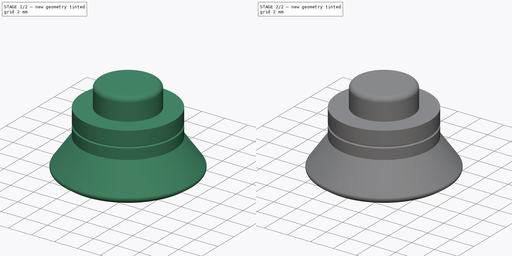
[diagram: build sequence overview — one tinted view per stage of 2, left to right]
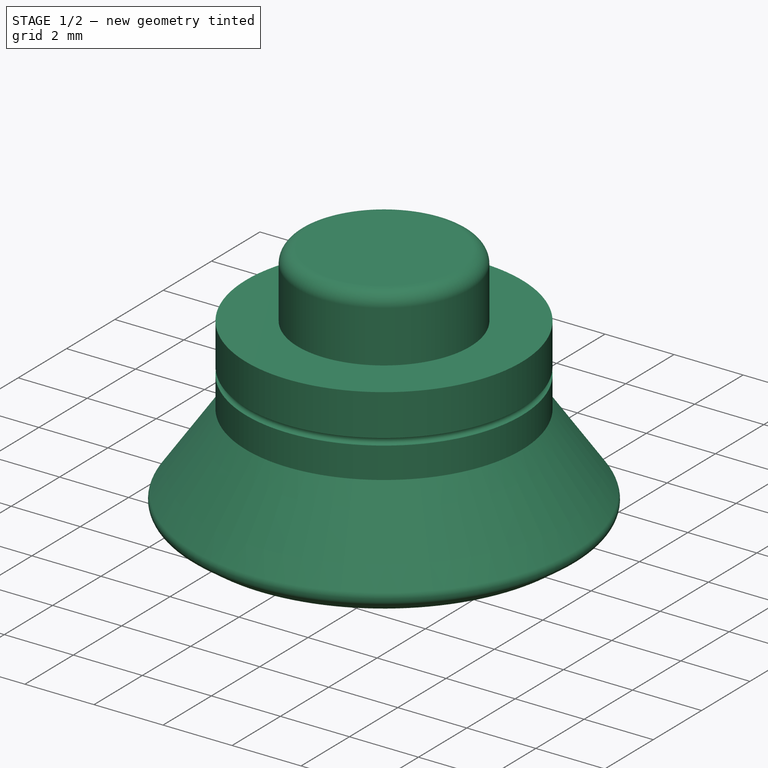
[diagram: stage 1 of 2 — iso view after this stage's code; geometry added in this stage tinted green]
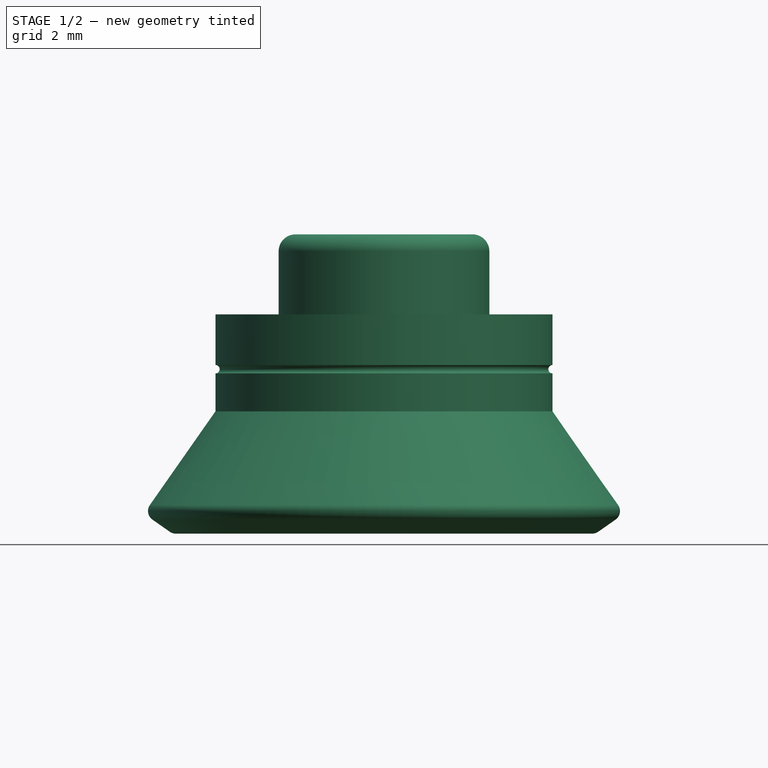
[diagram: stage 1 of 2 — front view after this stage's code; geometry added in this stage tinted green]
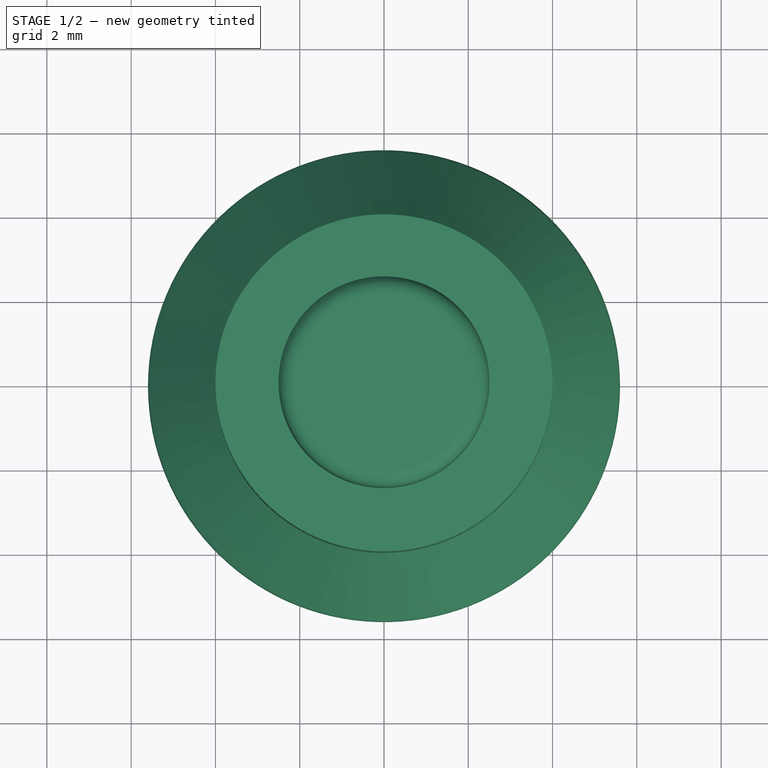
[diagram: stage 1 of 2 — top view after this stage's code; geometry added in this stage tinted green]
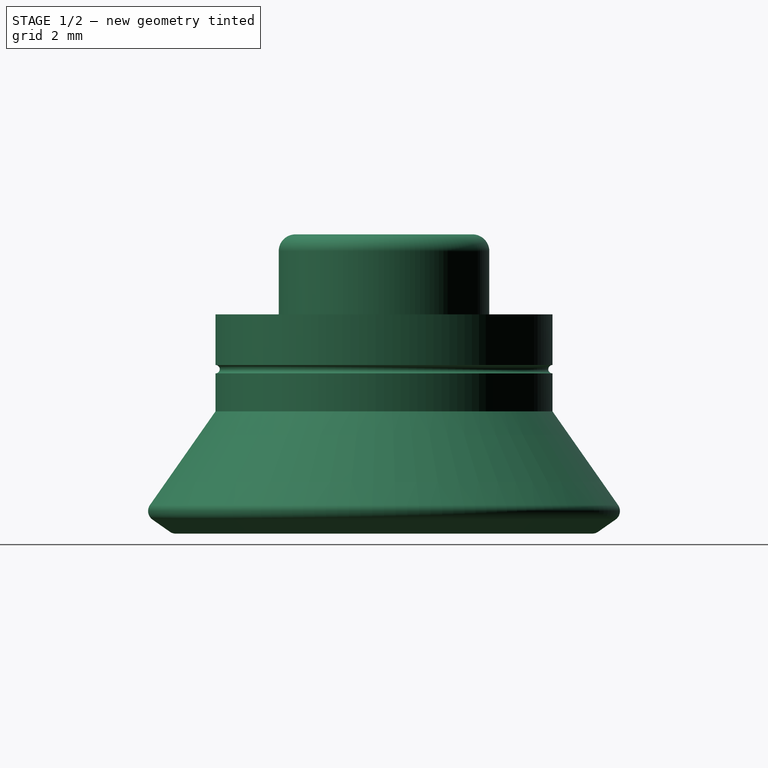
[diagram: stage 1 of 2 — right view after this stage's code; geometry added in this stage tinted green]
FCSTD DOCUMENT  (FreeCAD 1.0R39285 (Git))
Label: LampeOben
License: Creative Commons Attribution-NonCommercial 4.0
LicenseURL: https://creativecommons.org/licenses/by-nc/4.0/
objects: Sketcher::SketchObject×3, PartDesign::Pocket×2, PartDesign::Revolution×1, PartDesign::Body×1
note: 16 computed .brp shape members not serialized (recipe doc carries the construction recipe); baked Part::Feature solids carry a one-line shape summary decoded from their .brp

FEATURE [Sketcher::SketchObject] Sketch  label="S_Lampenkegel"
  ArcFitTolerance = 1e-06
  AttachmentSupport = -> [XZ_Plane]
  FullyConstrained = true
  MakeInternals = false
  MapMode = 5
  Placement = pos=(0,0,0) rot=(1,0,0;1.5708rad)
  sketch-geometry (17):
    g0: LineSegment StartX=0 StartY=1.9 StartZ=0 EndX=-2.1 EndY=1.9 EndZ=0
    g1: LineSegment StartX=-2.5 StartY=1.5 StartZ=0 EndX=-2.5 EndY=0 EndZ=0
    g2: LineSegment StartX=-2.5 StartY=0 StartZ=0 EndX=-4 EndY=0 EndZ=0
    g3: LineSegment StartX=-4 StartY=-2.3 StartZ=0 EndX=-5.55561 EndY=-4.52164 EndZ=0
    g4: LineSegment StartX=-5.49421 StartY=-4.86982 StartZ=0 EndX=-5.08464 EndY=-5.15661 EndZ=0
    g5: LineSegment StartX=-4.73645 StartY=-5.09521 StartZ=0 EndX=-2.91927 EndY=-2.5 EndZ=0
    g6: LineSegment StartX=-2.91927 StartY=-2.5 StartZ=0 EndX=0 EndY=-2.5 EndZ=0
    g7: ArcOfCircle CenterX=-5.35082 CenterY=-4.66503 CenterZ=0 NormalX=0 NormalY=0 NormalZ=1 AngleXU=0 Radius=0.25 StartAngle=2.53073 EndAngle=4.10152
    g8: GeomPoint [constr] X=-5.699 Y=-4.72642 Z=0
    g9: ArcOfCircle CenterX=-4.94124 CenterY=-4.95182 CenterZ=0 NormalX=0 NormalY=0 NormalZ=1 AngleXU=0 Radius=0.25 StartAngle=4.10152 EndAngle=5.67232
    g10: GeomPoint [constr] X=-4.87985 Y=-5.3 Z=0
    g11: LineSegment StartX=0 StartY=-2.5 StartZ=0 EndX=0 EndY=1.9 EndZ=0
    g12: ArcOfCircle CenterX=-4 CenterY=-1.3 CenterZ=0 NormalX=0 NormalY=0 NormalZ=1 AngleXU=0 Radius=0.1 StartAngle=4.71239 EndAngle=7.85398
    g13: LineSegment StartX=-4 StartY=0 StartZ=0 EndX=-4 EndY=-1.2 EndZ=0
    g14: LineSegment StartX=-4 StartY=-1.4 StartZ=0 EndX=-4 EndY=-2.3 EndZ=0
    g15: ArcOfCircle CenterX=-2.1 CenterY=1.5 CenterZ=0 NormalX=0 NormalY=0 NormalZ=1 AngleXU=0 Radius=0.4 StartAngle=1.5708 EndAngle=3.14159
    g16: GeomPoint [constr] X=-2.5 Y=1.9 Z=0
  constraints (46):
    c: PointOnObject(g0,g-2)
    c: Horizontal(g0)
    c: PointOnObject(g1,g-1)
    c: Vertical(g1)
    c: Coincident(g1,g2)
    c: PointOnObject(g2,g-1)
    c: Coincident(g2,g13)
    c: Coincident(g14,g3)
    c: Coincident(g5,g6)
    c: PointOnObject(g6,g-2)
    c: Horizontal(g6)
    c: PointOnObject(g8,g3)
    c: PointOnObject(g8,g4)
    c: Tangent(g3,g7) = -1.5708
    c: Tangent(g4,g7) = -1.5708
    c: PointOnObject(g10,g5)
    c: PointOnObject(g10,g4)
    c: Tangent(g5,g9) = -1.5708
    c: Tangent(g4,g9) = -1.5708
    c: DistanceX(g16,g0) = 2.5
    c: DistanceX(g2,g1) = 1.5
    c: DistanceY(g-1,g0) = 1.9
    c: DistanceY(g14,g2) = 2.3
    c: Radius(g7) = 0.25
    c: Radius(g9) = 0.25
    c: Angle(g4,g3) = 1.5708
    c: DistanceY(g10,g14) = 3
    c: Parallel(g3,g5)
    c: Distance(g3,g5) = 1
    c: DistanceY(g6,g-1) = 2.5
    c: Coincident(g6,g11)
    c: Coincident(g11,g0)
    c: Radius(g12) = 0.1
    c: DistanceY(g12,g2) = 1.3
    c: Vertical(g13)
    c: PointOnObject(g12,g13)
    c: PointOnObject(g12,g13)
    c: Vertical(g14)
    c: Coincident(g13,g12)
    c: Coincident(g12,g14)
    c: Angle(g14,g3) = 2.53073
    c: PointOnObject(g16,g1)
    c: PointOnObject(g16,g0)
    c: Tangent(g1,g15) = -1.5708
    c: Tangent(g0,g15) = -1.5708
    c: Radius(g15) = 0.4
FEATURE [PartDesign::Revolution] Revolution
  Angle = 360
  Angle2 = 60
  Axis = (0,2e-16,1)
  Base = (0,0,0)
  Placement = pos=(0,0,0) rot=(1,0,0;1.5708rad)
  Profile = -> Sketch
  ReferenceAxis = -> Sketch [V_Axis]
  Refine = true
  Suppressed = false
  Type = 0
FEATURE [Sketcher::SketchObject] Sketch001  label="S_Ledaufnahme"
  ArcFitTolerance = 1e-06
  AttachmentOffset = pos=(0,0,-1.5) rot=(0,0,1;0rad)
  AttachmentSupport = -> [XY_Plane]
  FullyConstrained = true
  MakeInternals = false
  MapMode = 5
  Placement = pos=(0,0,-1.5) rot=(0,0,1;0rad)
  sketch-geometry (5):
    g0: LineSegment StartX=-1.7 StartY=-2.1 StartZ=0 EndX=1.7 EndY=-2.1 EndZ=0
    g1: LineSegment StartX=1.7 StartY=-2.1 StartZ=0 EndX=1.7 EndY=2.1 EndZ=0
    g2: LineSegment StartX=1.7 StartY=2.1 StartZ=0 EndX=-1.7 EndY=2.1 EndZ=0
    g3: LineSegment StartX=-1.7 StartY=2.1 StartZ=0 EndX=-1.7 EndY=-2.1 EndZ=0
    g4: GeomPoint [constr] X=0 Y=0 Z=0
  constraints (12):
    c: Coincident(g0,g1)
    c: Coincident(g1,g2)
    c: Coincident(g2,g3)
    c: Coincident(g3,g0)
    c: Horizontal(g0)
    c: Horizontal(g2)
    c: Vertical(g1)
    c: Vertical(g3)
    c: Symmetric(g2,g0,g4)
    c: Coincident(g4,g-1)
    c: DistanceX(g2,g1) = 3.4
    c: DistanceY(g0,g1) = 4.2
FEATURE [PartDesign::Pocket] Pocket  label="LedAufnahme"
  BaseFeature = -> Revolution
  Direction = (0,0,-1)
  Length = 5
  Length2 = 5
  Placement = pos=(0,0,0) rot=(1,0,0;1.5708rad)
  Profile = -> Sketch001
  ReferenceAxis = -> Sketch001 [N_Axis]
  Refine = true
  Suppressed = false
  Type = 0
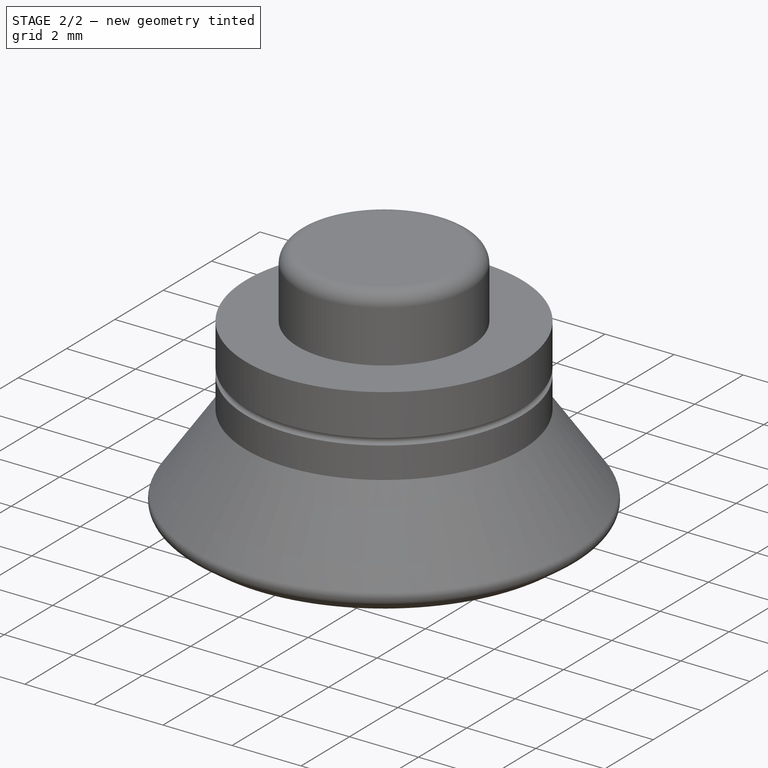
[diagram: stage 2 of 2 — iso view after this stage's code; geometry added in this stage tinted green]
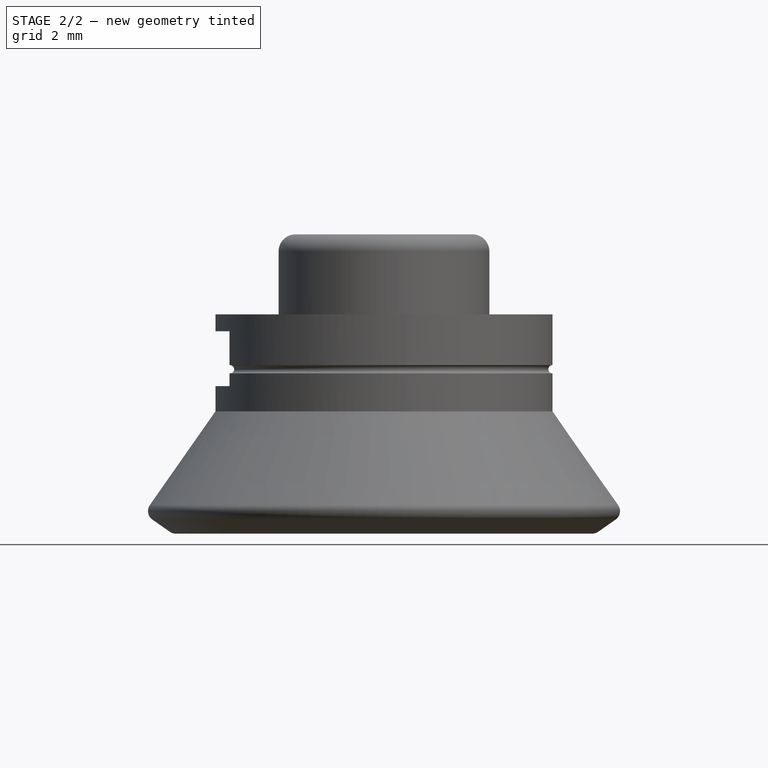
[diagram: stage 2 of 2 — front view after this stage's code; geometry added in this stage tinted green]
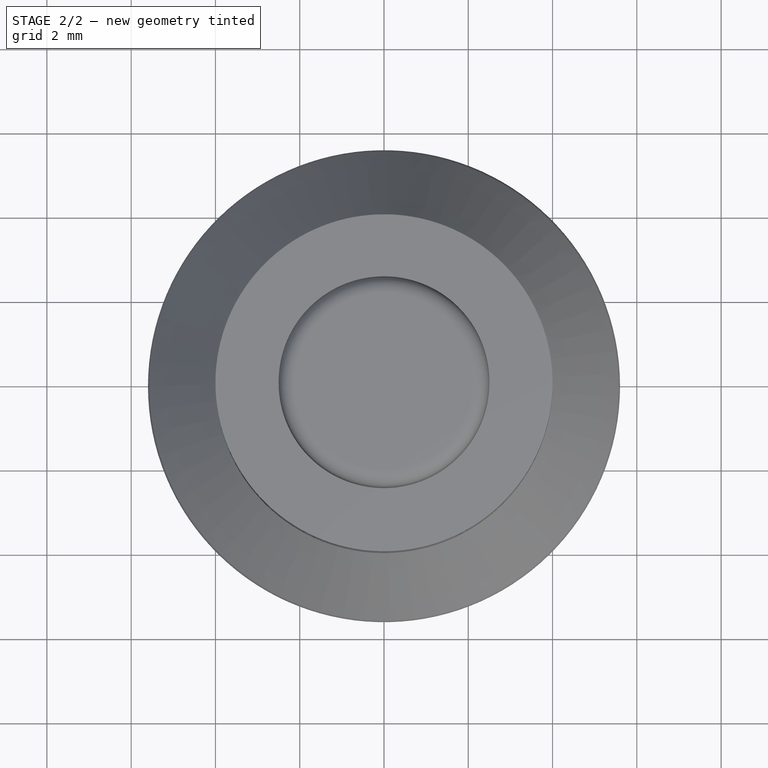
[diagram: stage 2 of 2 — top view after this stage's code; geometry added in this stage tinted green]
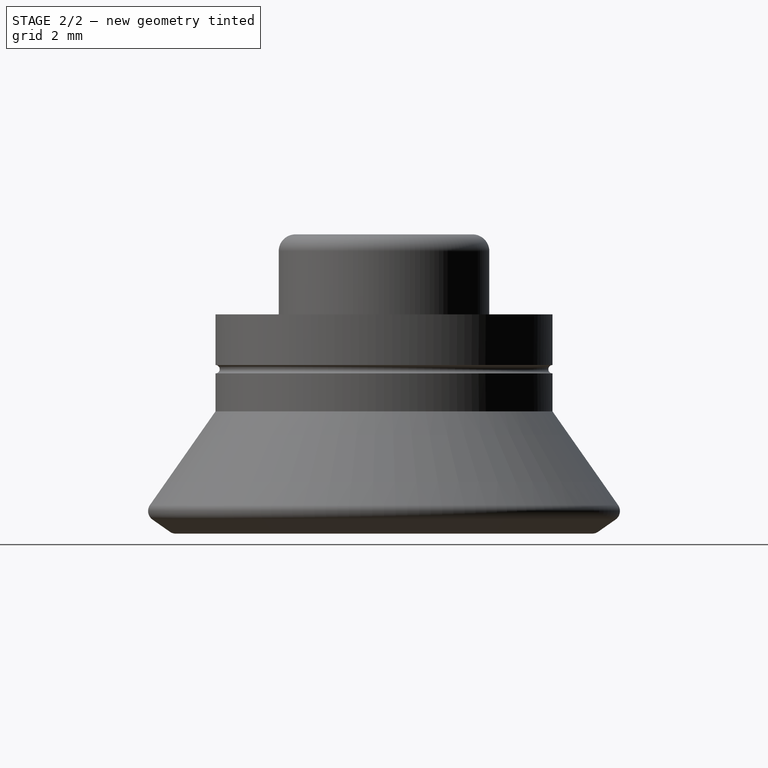
[diagram: stage 2 of 2 — right view after this stage's code; geometry added in this stage tinted green]
FEATURE [Sketcher::SketchObject] Sketch002  label="S_Kabelaufnahme"
  ArcFitTolerance = 1e-06
  AttachmentOffset = pos=(0,0,-0.4) rot=(0,0,1;0rad)
  AttachmentSupport = -> [XY_Plane]
  FullyConstrained = true
  MakeInternals = false
  MapMode = 5
  Placement = pos=(0,0,-0.4) rot=(0,0,1;0rad)
  sketch-geometry (8):
    g0: LineSegment StartX=-4.3 StartY=1.6 StartZ=0 EndX=-4.3 EndY=-1.6 EndZ=0
    g1: LineSegment StartX=-4.3 StartY=-1.6 StartZ=0 EndX=0.7 EndY=-1.6 EndZ=0
    g2: LineSegment StartX=0.7 StartY=1.6 StartZ=0 EndX=-4.3 EndY=1.6 EndZ=0
    g3: LineSegment StartX=0.7 StartY=1.6 StartZ=0 EndX=0.7 EndY=1.1 EndZ=0
    g4: LineSegment StartX=0.7 StartY=1.1 StartZ=0 EndX=1.2 EndY=1.1 EndZ=0
    g5: LineSegment StartX=1.2 StartY=1.1 StartZ=0 EndX=1.2 EndY=-1.1 EndZ=0
    g6: LineSegment StartX=1.2 StartY=-1.1 StartZ=0 EndX=0.7 EndY=-1.1 EndZ=0
    g7: LineSegment StartX=0.7 StartY=-1.1 StartZ=0 EndX=0.7 EndY=-1.6 EndZ=0
  constraints (22):
    c: Coincident(g0,g1)
    c: Coincident(g2,g0)
    c: Horizontal(g1)
    c: Horizontal(g2)
    c: DistanceX(g0,g2) = 5
    c: DistanceY(g0,g0) = 3.2
    c: Symmetric(g0,g0,g-1)
    c: Equal(g2,g1)
    c: Coincident(g2,g3)
    c: Vertical(g3)
    c: Coincident(g3,g4)
    c: Horizontal(g4)
    c: Coincident(g4,g5)
    c: Coincident(g5,g6)
    c: Horizontal(g6)
    c: Coincident(g6,g7)
    c: Coincident(g7,g1)
    c: Vertical(g7)
    c: DistanceY(g5,g4) = 2.2
    c: Symmetric(g4,g5,g-1)
    c: DistanceX(g-1,g4) = 1.2
    c: DistanceX(g2,g4) = 0.5
FEATURE [PartDesign::Pocket] Pocket001  label="KabelAufahme"
  BaseFeature = -> Pocket
  Direction = (0,0,-1)
  Length = 1.3
  Length2 = 5
  Placement = pos=(0,0,0) rot=(1,0,0;1.5708rad)
  Profile = -> Sketch002
  ReferenceAxis = -> Sketch002 [N_Axis]
  Refine = true
  Suppressed = false
  Type = 0
FEATURE [PartDesign::Body] Body  label="LampeOben"
  AllowCompound = false
  Group = -> [Sketch,Revolution,Sketch001,Pocket,Sketch002,Pocket001]
  Origin = -> Origin
  Tip = -> Pocket001
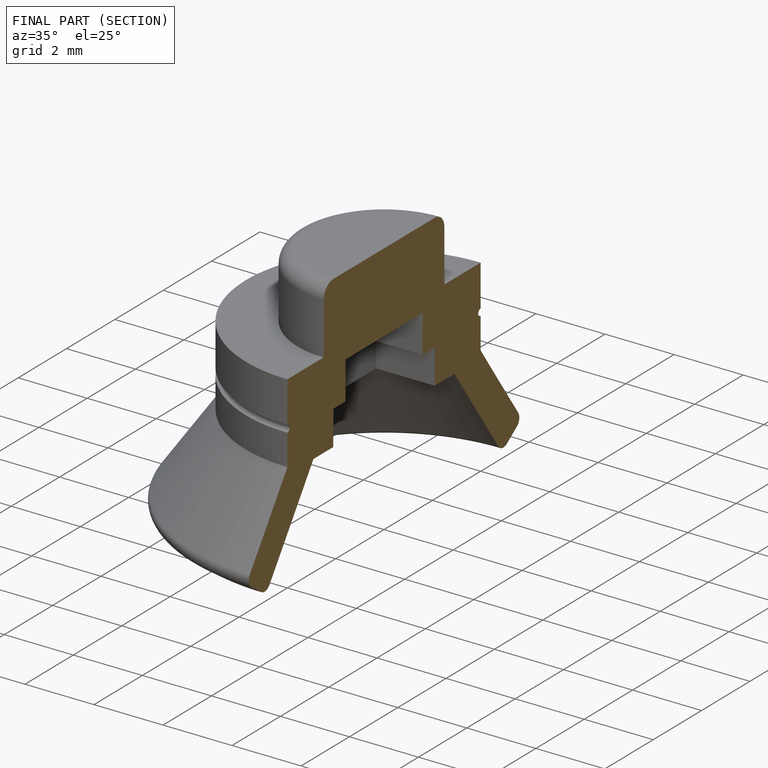
[diagram: finished part — half-section view (interior)]
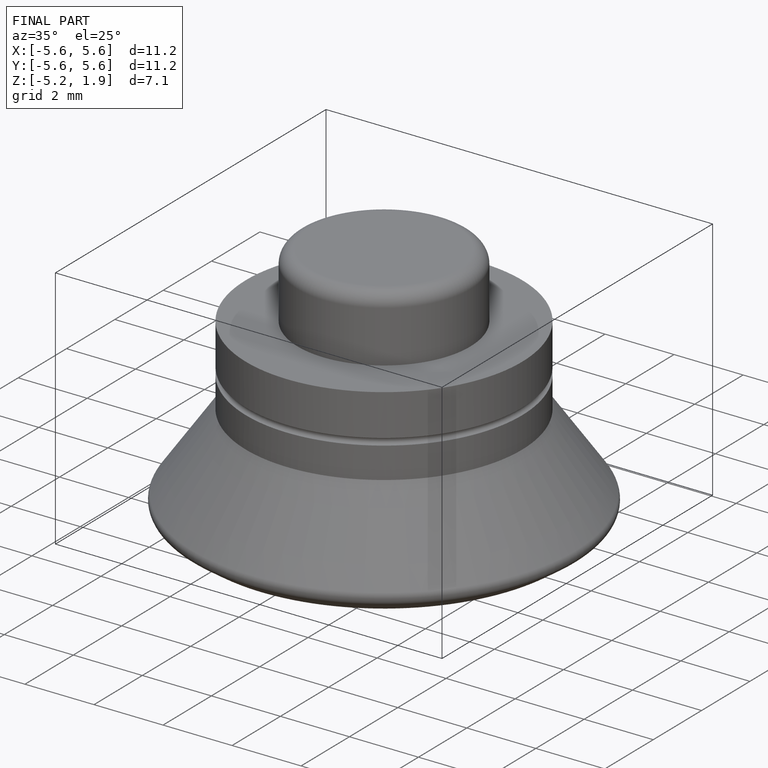
[diagram: finished part — iso view with bounding-box wireframe]
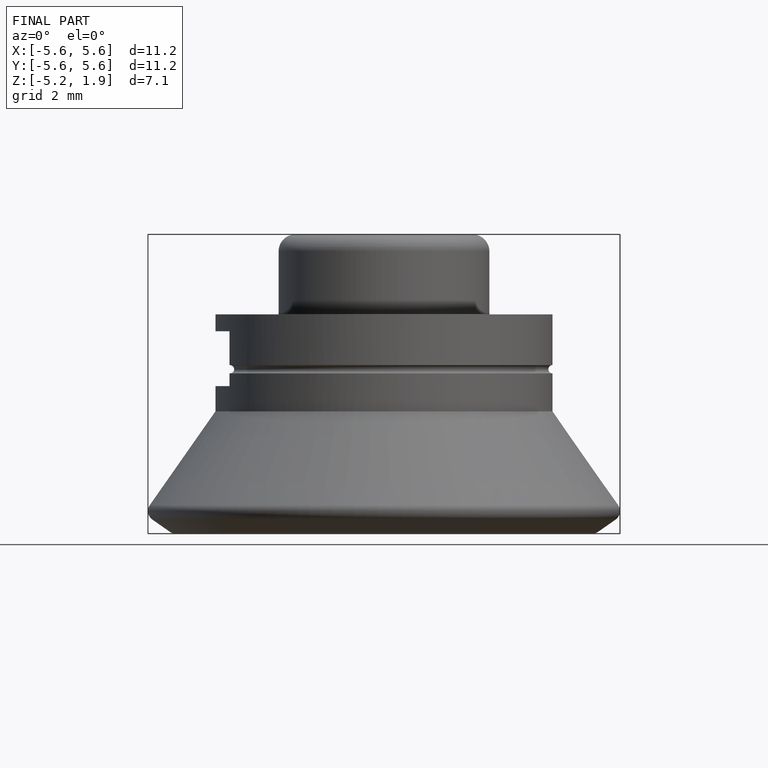
[diagram: finished part — front view with bounding-box wireframe]
